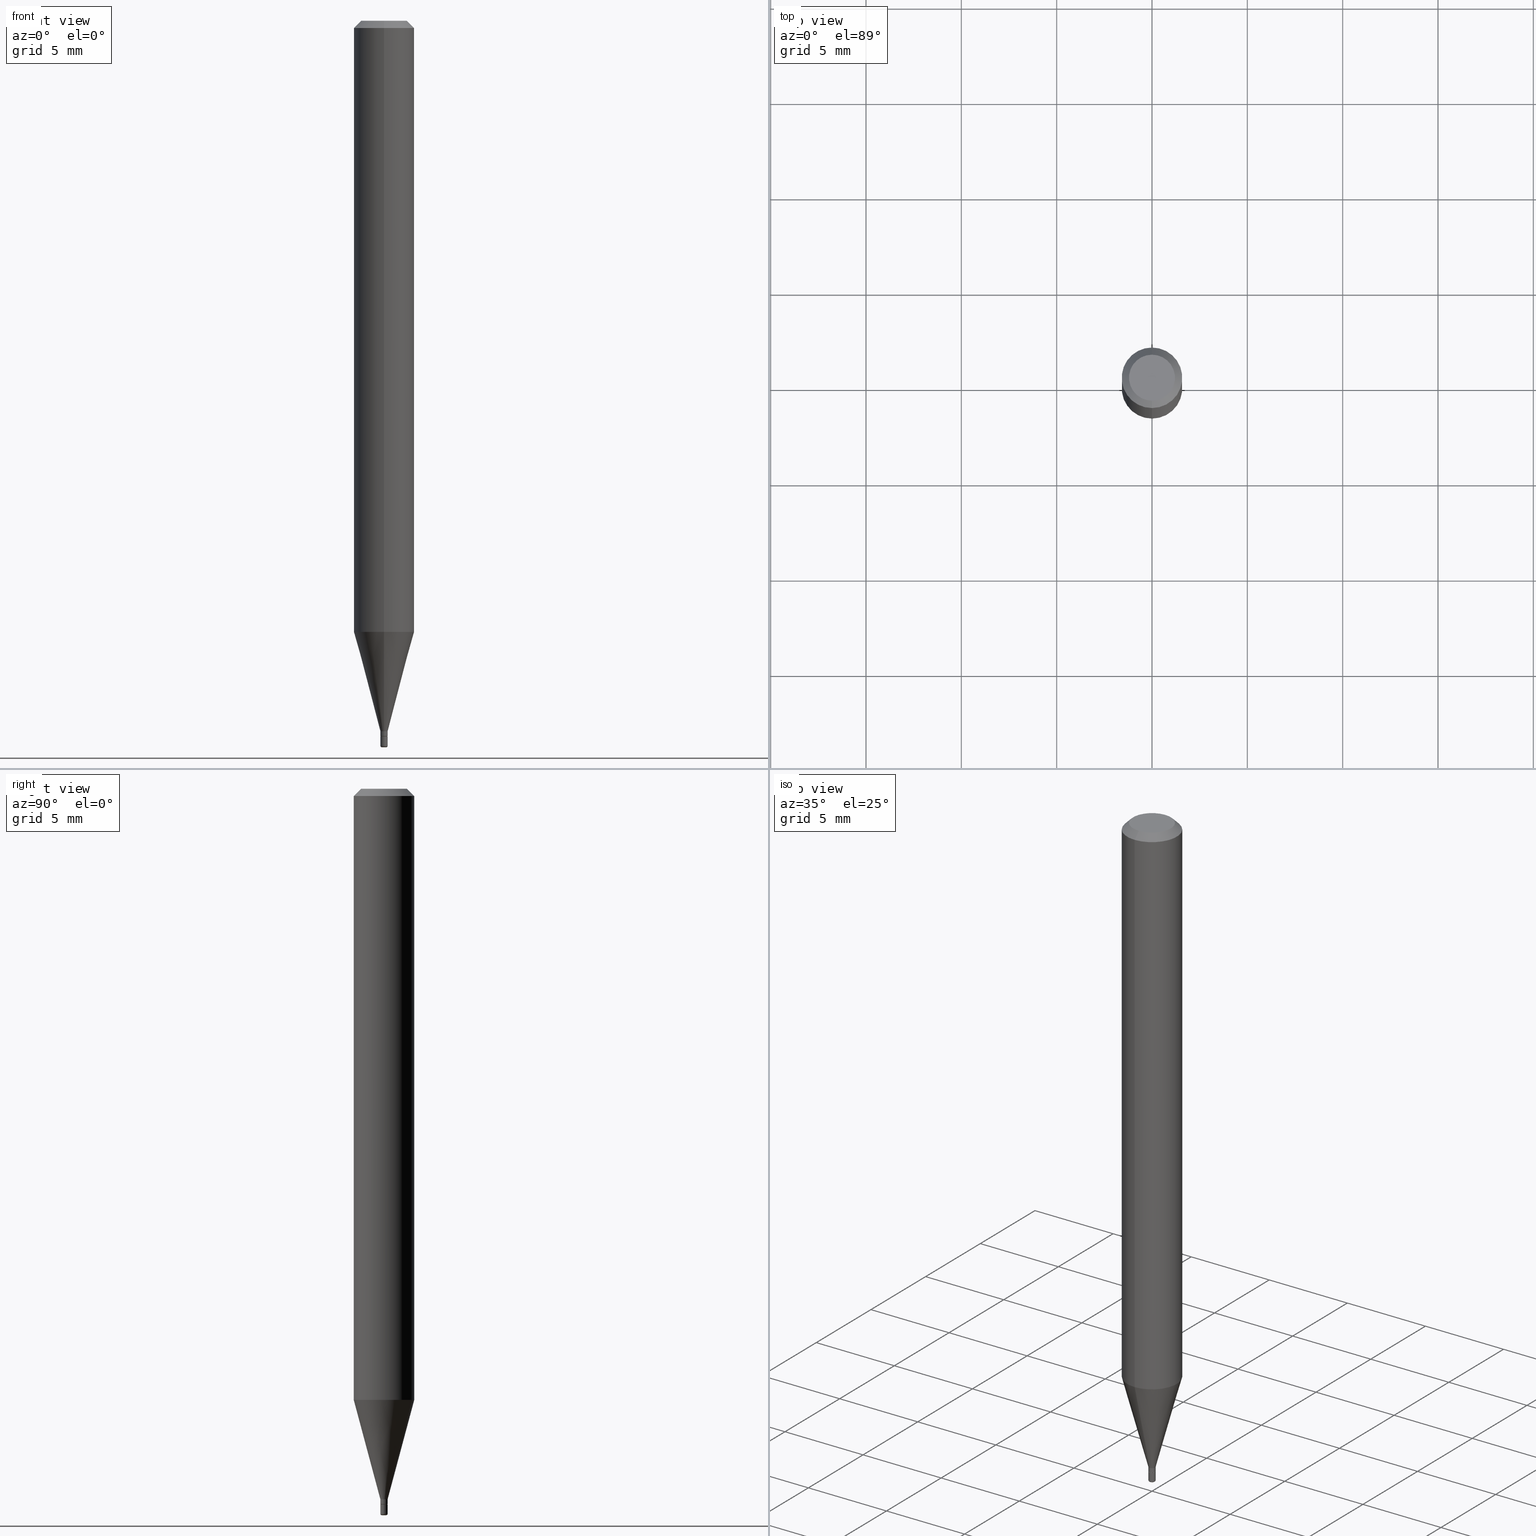
[diagram: canonical four-view strip — front | top / right | iso, engineering-drawing reading convention]
A machine part, canonical four-view strip (front | top / right | iso — engineering-drawing reading convention). The complete STEP part file that produces these views, byte-faithful:
ISO-10303-21;
HEADER;
FILE_DESCRIPTION (( 'STEP AP203' ),
    '1' );
FILE_NAME ('08641.STEP',
    '2024-02-29T20:07:36',
    ( '' ),
    ( '' ),
    'SwSTEP 2.0',
    'SolidWorks 2023',
    '' );
FILE_SCHEMA (( 'CONFIG_CONTROL_DESIGN' ));
ENDSEC;

DATA;
#1 = ORIENTED_EDGE ( 'NONE', *, *, #42, .F. ) ;
#2 = ADVANCED_FACE ( 'NONE', ( #465 ), #269, .T. ) ;
#3 = PLANE ( 'NONE',  #129 ) ;
#4 = CIRCLE ( 'NONE', #237, 0.04750000000000000749 ) ;
#5 = EDGE_LOOP ( 'NONE', ( #428, #290 ) ) ;
#6 = CARTESIAN_POINT ( 'NONE',  ( -6.682171226906381359E-45, 9.529232442263498646E-31, 2.730877953512450697E-16 ) ) ;
#7 = EDGE_LOOP ( 'NONE', ( #265, #104, #441, #200 ) ) ;
#8 = FACE_OUTER_BOUND ( 'NONE', #304, .T. ) ;
#9 = ORIENTED_EDGE ( 'NONE', *, *, #452, .T. ) ;
#10 = CARTESIAN_POINT ( 'NONE',  ( 0.000000000000000000, 0.000000000000000000, 0.000000000000000000 ) ) ;
#11 = AXIS2_PLACEMENT_3D ( 'NONE', #468, #22, #303 ) ;
#12 = CC_DESIGN_APPROVAL ( #353, ( #112 ) ) ;
#13 = DIRECTION ( 'NONE',  ( -6.982962677686265922E-15, -1.000000000000000000, 0.000000000000000000 ) ) ;
#14 = CC_DESIGN_DATE_AND_TIME_ASSIGNMENT ( #242, #31, ( #112 ) ) ;
#15 = PLANE ( 'NONE',  #130 ) ;
#16 = PRODUCT ( '08641', '08641', '', ( #439 ) ) ;
#17 = DIRECTION ( 'NONE',  ( -6.982962677686265922E-15, -1.000000000000000000, 3.489439149049856002E-15 ) ) ;
#18 = EDGE_CURVE ( 'NONE', #160, #508, #100, .T. ) ;
#19 = CIRCLE ( 'NONE', #88, 0.007499999999999965028 ) ;
#20 = ORIENTED_EDGE ( 'NONE', *, *, #69, .T. ) ;
#21 = ORIENTED_EDGE ( 'NONE', *, *, #511, .F. ) ;
#22 = DIRECTION ( 'NONE',  ( -2.445468806185136597E-29, 3.491481338843145583E-15, 1.000000000000000000 ) ) ;
#23 = ORIENTED_EDGE ( 'NONE', *, *, #452, .F. ) ;
#24 = EDGE_CURVE ( 'NONE', #193, #116, #4, .T. ) ;
#25 = DIRECTION ( 'NONE',  ( -4.851104656540966641E-15, -0.7071067811865503483, -0.7071067811865446862 ) ) ;
#26 = CARTESIAN_POINT ( 'NONE',  ( -5.237222008261085941E-17, -0.007500000000005154453, -1.477000000000000313 ) ) ;
#27 = CIRCLE ( 'NONE', #473, 0.06250000000000000000 ) ;
#28 = DIRECTION ( 'NONE',  ( -6.982962677686265133E-15, -1.000000000000000000, 0.000000000000000000 ) ) ;
#29 = ADVANCED_FACE ( 'NONE', ( #310 ), #472, .T. ) ;
#30 = EDGE_LOOP ( 'NONE', ( #20, #384, #169, #23 ) ) ;
#31 = DATE_TIME_ROLE ( 'creation_date' ) ;
#32 = DIRECTION ( 'NONE',  ( -2.446894859695865878E-29, 3.489439149049856397E-15, 1.000000000000000000 ) ) ;
#33 = DIMENSIONAL_EXPONENTS ( 1.000000000000000000, 0.000000000000000000, 0.000000000000000000, 0.000000000000000000, 0.000000000000000000, 0.000000000000000000, 0.000000000000000000 ) ;
#34 = DIRECTION ( 'NONE',  ( -6.982962677686265133E-15, -1.000000000000000000, 3.489439149049856002E-15 ) ) ;
#35 = VECTOR ( 'NONE', #376, 39.37007874015748143 ) ;
#36 = EDGE_CURVE ( 'NONE', #358, #381, #513, .T. ) ;
#37 = DIRECTION ( 'NONE',  ( -2.446894859695865878E-29, 3.489439149049856002E-15, 1.000000000000000000 ) ) ;
#38 = ORIENTED_EDGE ( 'NONE', *, *, #91, .T. ) ;
#39 = PERSON_AND_ORGANIZATION ( #518, #197 ) ;
#40 = DIRECTION ( 'NONE',  ( -6.982962677686265922E-15, -1.000000000000000000, 3.489439149049856397E-15 ) ) ;
#41 = SHAPE_DEFINITION_REPRESENTATION ( #455, #416 ) ;
#42 = EDGE_CURVE ( 'NONE', #172, #68, #394, .T. ) ;
#43 = LINE ( 'NONE', #207, #385 ) ;
#44 = CIRCLE ( 'NONE', #341, 0.06250000000000000000 ) ;
#45 = ORIENTED_EDGE ( 'NONE', *, *, #50, .T. ) ;
#46 = FACE_OUTER_BOUND ( 'NONE', #154, .T. ) ;
#47 = EDGE_CURVE ( 'NONE', #228, #358, #431, .T. ) ;
#48 = ORIENTED_EDGE ( 'NONE', *, *, #444, .F. ) ;
#49 = CARTESIAN_POINT ( 'NONE',  ( 0.000000000000000000, 0.000000000000000000, 0.000000000000000000 ) ) ;
#50 = EDGE_CURVE ( 'NONE', #203, #275, #484, .T. ) ;
#51 = DIRECTION ( 'NONE',  ( -2.446894859695865878E-29, 3.489439149049856002E-15, 1.000000000000000000 ) ) ;
#52 = AXIS2_PLACEMENT_3D ( 'NONE', #6, #73, #34 ) ;
#53 = AXIS2_PLACEMENT_3D ( 'NONE', #342, #60, #344 ) ;
#54 = FACE_OUTER_BOUND ( 'NONE', #30, .T. ) ;
#55 = CARTESIAN_POINT ( 'NONE',  ( 3.087338282629810995E-29, -4.402755200976571001E-15, -1.261737205583712162 ) ) ;
#56 = LENGTH_MEASURE_WITH_UNIT ( LENGTH_MEASURE( 0.02539999999999999897 ), #417 );
#57 = ORIENTED_EDGE ( 'NONE', *, *, #110, .F. ) ;
#58 = CLOSED_SHELL ( 'NONE', ( #2, #308, #368, #268, #323, #210, #474, #29, #488, #138, #400, #127 ) ) ;
#59 = APPROVAL_PERSON_ORGANIZATION ( #234, #156, #247 ) ;
#60 = DIRECTION ( 'NONE',  ( -2.446894859695865878E-29, 3.489439149049856002E-15, 1.000000000000000000 ) ) ;
#61 = EDGE_LOOP ( 'NONE', ( #81, #401, #211, #350 ) ) ;
#62 = FACE_OUTER_BOUND ( 'NONE', #107, .T. ) ;
#63 = DIRECTION ( 'NONE',  ( -6.982962677686265922E-15, -1.000000000000000000, 3.489439149049856397E-15 ) ) ;
#64 = CARTESIAN_POINT ( 'NONE',  ( -0.004499999999999991854, -5.189352222110848406E-15, -1.500000000000000222 ) ) ;
#65 = VERTEX_POINT ( 'NONE', #398 ) ;
#66 = DIRECTION ( 'NONE',  ( -2.446894859695865878E-29, 3.489439149049856397E-15, 1.000000000000000000 ) ) ;
#67 = AXIS2_PLACEMENT_3D ( 'NONE', #10, #97, #17 ) ;
#68 = VERTEX_POINT ( 'NONE', #276 ) ;
#69 = EDGE_CURVE ( 'NONE', #288, #206, #19, .T. ) ;
#70 = PERSON_AND_ORGANIZATION ( #518, #197 ) ;
#71 = DIRECTION ( 'NONE',  ( 1.839019923739595582E-15, 0.2588190451025242922, 0.9659258262890673130 ) ) ;
#72 = DATE_AND_TIME ( #285, #335 ) ;
#73 = DIRECTION ( 'NONE',  ( -2.446894859695865878E-29, 3.489439149049856002E-15, 1.000000000000000000 ) ) ;
#74 = ORIENTED_EDGE ( 'NONE', *, *, #177, .T. ) ;
#75 = DATE_TIME_ROLE ( 'classification_date' ) ;
#76 = VECTOR ( 'NONE', #71, 39.37007874015748854 ) ;
#77 = CARTESIAN_POINT ( 'NONE',  ( 3.589594759173836037E-29, -5.119007231656140141E-15, -1.467000000000000304 ) ) ;
#78 = CIRCLE ( 'NONE', #266, 0.007499999999999965028 ) ;
#79 = EDGE_CURVE ( 'NONE', #206, #160, #392, .T. ) ;
#80 = PRODUCT_DEFINITION_FORMATION_WITH_SPECIFIED_SOURCE ( 'ANY', '', #16, .NOT_KNOWN. ) ;
#81 = ORIENTED_EDGE ( 'NONE', *, *, #191, .T. ) ;
#82 = COORDINATED_UNIVERSAL_TIME_OFFSET ( 5, 0, .BEHIND. ) ;
#83 = DIRECTION ( 'NONE',  ( 1.000000000000000000, -6.982962677686265922E-15, 4.876176775795935793E-29 ) ) ;
#84 = ORIENTED_EDGE ( 'NONE', *, *, #232, .F. ) ;
#85 = DIRECTION ( 'NONE',  ( -2.445468806185136597E-29, 3.491481338843145583E-15, 1.000000000000000000 ) ) ;
#86 = ORIENTED_EDGE ( 'NONE', *, *, #110, .T. ) ;
#87 = DIRECTION ( 'NONE',  ( -6.982962677686265922E-15, -1.000000000000000000, 0.000000000000000000 ) ) ;
#88 = AXIS2_PLACEMENT_3D ( 'NONE', #235, #243, #119 ) ;
#89 = AXIS2_PLACEMENT_3D ( 'NONE', #427, #301, #223 ) ;
#90 = EDGE_LOOP ( 'NONE', ( #231, #503, #45, #379 ) ) ;
#91 = EDGE_CURVE ( 'NONE', #508, #160, #446, .T. ) ;
#92 = DIRECTION ( 'NONE',  ( -2.445468806185136597E-29, 3.491481338843145583E-15, 1.000000000000000000 ) ) ;
#93 = FACE_OUTER_BOUND ( 'NONE', #166, .T. ) ;
#94 = FACE_OUTER_BOUND ( 'NONE', #90, .T. ) ;
#95 = ORIENTED_EDGE ( 'NONE', *, *, #336, .T. ) ;
#96 = CIRCLE ( 'NONE', #53, 0.007500000000000010998 ) ;
#97 = DIRECTION ( 'NONE',  ( -2.446894859695865878E-29, 3.489439149049856002E-15, 1.000000000000000000 ) ) ;
#98 = CARTESIAN_POINT ( 'NONE',  ( 3.316907271900976589E-16, 0.04750000000000000749, -2.920446190424566493E-17 ) ) ;
#99 = ORIENTED_EDGE ( 'NONE', *, *, #177, .F. ) ;
#100 = CIRCLE ( 'NONE', #412, 0.007499999999999997120 ) ;
#101 = CIRCLE ( 'NONE', #481, 0.06250000000000000000 ) ;
#102 = LOCAL_TIME ( 15, 7, 36.00000000000000000, #389 ) ;
#103 = LINE ( 'NONE', #461, #315 ) ;
#104 = ORIENTED_EDGE ( 'NONE', *, *, #168, .T. ) ;
#105 = DIRECTION ( 'NONE',  ( 2.446894859695865317E-29, -3.489439149049856397E-15, -1.000000000000000000 ) ) ;
#106 = CC_DESIGN_PERSON_AND_ORGANIZATION_ASSIGNMENT ( #274, #470, ( #16 ) ) ;
#107 = EDGE_LOOP ( 'NONE', ( #469, #295, #388, #1 ) ) ;
#108 = CARTESIAN_POINT ( 'NONE',  ( -5.237222008264694979E-17, -0.007499999999999993651, 2.617079361787390017E-17 ) ) ;
#109 = CARTESIAN_POINT ( 'NONE',  ( 3.613180161138540039E-29, -5.158663678140748150E-15, -1.477500000000000258 ) ) ;
#110 = EDGE_CURVE ( 'NONE', #420, #409, #291, .T. ) ;
#111 = VECTOR ( 'NONE', #128, 39.37007874015748143 ) ;
#112 = PRODUCT_DEFINITION ( 'UNKNOWN', '', #80, #190 ) ;
#113 = DIRECTION ( 'NONE',  ( -6.982962677686265922E-15, -1.000000000000000000, 3.489439149049856397E-15 ) ) ;
#114 = PERSON_AND_ORGANIZATION_ROLE ( 'creator' ) ;
#115 = CARTESIAN_POINT ( 'NONE',  ( 5.329070518204347910E-17, 0.007499999999994891829, -1.467000000000000304 ) ) ;
#116 = VERTEX_POINT ( 'NONE', #443 ) ;
#117 = PERSON_AND_ORGANIZATION_ROLE ( 'creator' ) ;
#118 = VECTOR ( 'NONE', #436, 39.37007874015748143 ) ;
#119 = DIRECTION ( 'NONE',  ( 1.000000000000000000, -6.982962677686300632E-15, 0.000000000000000000 ) ) ;
#120 = AXIS2_PLACEMENT_3D ( 'NONE', #49, #370, #180 ) ;
#121 = EDGE_LOOP ( 'NONE', ( #21, #189, #74, #330 ) ) ;
#122 = COORDINATED_UNIVERSAL_TIME_OFFSET ( 5, 0, .BEHIND. ) ;
#123 = CARTESIAN_POINT ( 'NONE',  ( 2.486899575160686153E-16, 0.007499999999994892697, -1.467000000000000304 ) ) ;
#124 = ORIENTED_EDGE ( 'NONE', *, *, #426, .F. ) ;
#125 = DIRECTION ( 'NONE',  ( -2.438088387897960049E-29, 3.491481338843145188E-15, 1.000000000000000000 ) ) ;
#126 = ORIENTED_EDGE ( 'NONE', *, *, #426, .T. ) ;
#127 = ADVANCED_FACE ( 'NONE', ( #199 ), #479, .T. ) ;
#128 = DIRECTION ( 'NONE',  ( -2.446894859695865878E-29, 3.489439149049856397E-15, 1.000000000000000000 ) ) ;
#129 = AXIS2_PLACEMENT_3D ( 'NONE', #317, #233, #113 ) ;
#130 = AXIS2_PLACEMENT_3D ( 'NONE', #408, #453, #496 ) ;
#131 = CC_DESIGN_PERSON_AND_ORGANIZATION_ASSIGNMENT ( #39, #361, ( #419 ) ) ;
#132 = EDGE_CURVE ( 'NONE', #163, #65, #320, .T. ) ;
#133 = DIRECTION ( 'NONE',  ( -6.982962677686265133E-15, -1.000000000000000000, 0.000000000000000000 ) ) ;
#134 = DIRECTION ( 'NONE',  ( -2.446894859695865878E-29, 3.489439149049856002E-15, 1.000000000000000000 ) ) ;
#135 = CARTESIAN_POINT ( 'NONE',  ( 0.000000000000000000, 0.000000000000000000, 0.000000000000000000 ) ) ;
#136 = CIRCLE ( 'NONE', #429, 0.004499999999999991854 ) ;
#137 = CARTESIAN_POINT ( 'NONE',  ( 3.668203209277704895E-29, -5.237222008264718177E-15, -1.500000000000000222 ) ) ;
#138 = ADVANCED_FACE ( 'NONE', ( #476 ), #3, .F. ) ;
#139 = DIRECTION ( 'NONE',  ( -2.445468806185136877E-29, 3.491481338843145188E-15, 1.000000000000000000 ) ) ;
#140 = ORIENTED_EDGE ( 'NONE', *, *, #336, .F. ) ;
#141 = ADVANCED_FACE ( 'NONE', ( #360 ), #371, .T. ) ;
#142 = DIRECTION ( 'NONE',  ( 1.000000000000000000, -6.982962677686396084E-15, 0.000000000000000000 ) ) ;
#143 = ORIENTED_EDGE ( 'NONE', *, *, #511, .T. ) ;
#144 = AXIS2_PLACEMENT_3D ( 'NONE', #433, #406, #162 ) ;
#145 = APPROVAL ( #277, 'UNSPECIFIED' ) ;
#146 = AXIS2_PLACEMENT_3D ( 'NONE', #289, #209, #445 ) ;
#147 = APPROVAL_PERSON_ORGANIZATION ( #319, #145, #391 ) ;
#148 = DIRECTION ( 'NONE',  ( -6.982962677686265922E-15, -1.000000000000000000, 3.483106191921935554E-15 ) ) ;
#149 = ORIENTED_EDGE ( 'NONE', *, *, #399, .T. ) ;
#150 = FACE_OUTER_BOUND ( 'NONE', #363, .T. ) ;
#151 = ADVANCED_FACE ( 'NONE', ( #278 ), #390, .F. ) ;
#152 = DIRECTION ( 'NONE',  ( 2.446894859695865878E-29, -3.489439149049856002E-15, -1.000000000000000000 ) ) ;
#153 = CALENDAR_DATE ( 2024, 29, 2 ) ;
#154 = EDGE_LOOP ( 'NONE', ( #345, #404, #9, #434 ) ) ;
#155 = APPROVAL_DATE_TIME ( #405, #156 ) ;
#156 = APPROVAL ( #432, 'UNSPECIFIED' ) ;
#157 = CARTESIAN_POINT ( 'NONE',  ( 3.614063707770794990E-29, -5.153901623146638448E-15, -1.477000000000000313 ) ) ;
#158 = COORDINATED_UNIVERSAL_TIME_OFFSET ( 5, 0, .BEHIND. ) ;
#159 = DIRECTION ( 'NONE',  ( 1.000000000000000000, -6.982962677686237523E-15, 0.000000000000000000 ) ) ;
#160 = VERTEX_POINT ( 'NONE', #403 ) ;
#161 = PERSON_AND_ORGANIZATION ( #518, #197 ) ;
#162 = DIRECTION ( 'NONE',  ( 1.000000000000000000, -6.982962677686300632E-15, 4.883557194083124672E-29 ) ) ;
#163 = VERTEX_POINT ( 'NONE', #123 ) ;
#164 = DIRECTION ( 'NONE',  ( -2.446894859695865878E-29, 3.489439149049856002E-15, 1.000000000000000000 ) ) ;
#165 = CONICAL_SURFACE ( 'NONE', #364, 0.007500000000000010998, 0.2617993877991495744 ) ;
#166 = EDGE_LOOP ( 'NONE', ( #493, #143, #482, #99 ) ) ;
#167 = LINE ( 'NONE', #329, #118 ) ;
#168 = EDGE_CURVE ( 'NONE', #65, #172, #43, .T. ) ;
#169 = ORIENTED_EDGE ( 'NONE', *, *, #91, .F. ) ;
#170 = LINE ( 'NONE', #214, #111 ) ;
#171 = CC_DESIGN_PERSON_AND_ORGANIZATION_ASSIGNMENT ( #326, #516, ( #80 ) ) ;
#172 = VERTEX_POINT ( 'NONE', #365 ) ;
#173 = EDGE_CURVE ( 'NONE', #116, #193, #505, .T. ) ;
#174 = DIRECTION ( 'NONE',  ( -6.982962677686265922E-15, -1.000000000000000000, 4.370956789862821150E-15 ) ) ;
#175 = CONICAL_SURFACE ( 'NONE', #238, 0.006999999999999974992, 0.7853981633975507526 ) ;
#176 = LOCAL_TIME ( 15, 7, 36.00000000000000000, #158 ) ;
#177 = EDGE_CURVE ( 'NONE', #116, #172, #167, .T. ) ;
#178 = DIRECTION ( 'NONE',  ( 1.000000000000000000, -6.982962677686267499E-15, 4.876176775795935793E-29 ) ) ;
#179 = CARTESIAN_POINT ( 'NONE',  ( 3.614063707770794990E-29, -5.153901623146638448E-15, -1.477000000000000313 ) ) ;
#180 = DIRECTION ( 'NONE',  ( 1.000000000000000000, -6.982962677686267499E-15, 4.876176775795935793E-29 ) ) ;
#181 = AXIS2_PLACEMENT_3D ( 'NONE', #373, #450, #133 ) ;
#182 = CARTESIAN_POINT ( 'NONE',  ( 0.004499999999999991854, -5.258170896297777797E-15, -1.497000000000000108 ) ) ;
#183 = ORIENTED_EDGE ( 'NONE', *, *, #187, .T. ) ;
#184 = DIRECTION ( 'NONE',  ( -2.445468806185136597E-29, 3.491481338843145583E-15, 1.000000000000000000 ) ) ;
#185 = ORIENTED_EDGE ( 'NONE', *, *, #47, .F. ) ;
#186 = VECTOR ( 'NONE', #362, 39.37007874015748854 ) ;
#187 = EDGE_CURVE ( 'NONE', #203, #163, #456, .T. ) ;
#188 = DIRECTION ( 'NONE',  ( -2.446894859695865878E-29, 3.489439149049856002E-15, 1.000000000000000000 ) ) ;
#189 = ORIENTED_EDGE ( 'NONE', *, *, #173, .F. ) ;
#190 = DESIGN_CONTEXT ( 'detailed design', #491, 'design' ) ;
#191 = EDGE_CURVE ( 'NONE', #381, #358, #457, .T. ) ;
#192 = CARTESIAN_POINT ( 'NONE',  ( 0.007499999999999997120, -5.211035898223395623E-15, -1.477500000000000258 ) ) ;
#193 = VERTEX_POINT ( 'NONE', #415 ) ;
#194 = CC_DESIGN_DATE_AND_TIME_ASSIGNMENT ( #72, #75, ( #419 ) ) ;
#195 = CARTESIAN_POINT ( 'NONE',  ( 4.973799150324298117E-17, 0.006999999999994819394, -1.477500000000000258 ) ) ;
#196 = VECTOR ( 'NONE', #487, 39.37007874015748143 ) ;
#197 = ORGANIZATION ( 'UNSPECIFIED', 'UNSPECIFIED', '' ) ;
#198 = COORDINATED_UNIVERSAL_TIME_OFFSET ( 5, 0, .BEHIND. ) ;
#199 = FACE_OUTER_BOUND ( 'NONE', #302, .T. ) ;
#200 = ORIENTED_EDGE ( 'NONE', *, *, #246, .F. ) ;
#201 = DIRECTION ( 'NONE',  ( 1.000000000000000000, 0.000000000000000000, 0.000000000000000000 ) ) ;
#202 = CARTESIAN_POINT ( 'NONE',  ( 3.668203209277704895E-29, -5.237222008264718177E-15, -1.500000000000000222 ) ) ;
#203 = VERTEX_POINT ( 'NONE', #250 ) ;
#204 = APPROVAL_DATE_TIME ( #435, #353 ) ;
#205 = DIRECTION ( 'NONE',  ( -2.445468806185136597E-29, 3.491481338843145583E-15, 1.000000000000000000 ) ) ;
#206 = VERTEX_POINT ( 'NONE', #367 ) ;
#207 = CARTESIAN_POINT ( 'NONE',  ( 4.440892098500625669E-16, 0.06250000000000000000, -2.180899468156160002E-16 ) ) ;
#208 = CIRCLE ( 'NONE', #498, 0.006999999999999974992 ) ;
#209 = DIRECTION ( 'NONE',  ( -2.446894859695865878E-29, 3.489439149049856002E-15, 1.000000000000000000 ) ) ;
#210 = ADVANCED_FACE ( 'NONE', ( #94 ), #298, .T. ) ;
#211 = ORIENTED_EDGE ( 'NONE', *, *, #187, .F. ) ;
#212 = DIRECTION ( 'NONE',  ( 1.000000000000000000, -6.982962677686300632E-15, 0.000000000000000000 ) ) ;
#213 = EDGE_LOOP ( 'NONE', ( #38, #261 ) ) ;
#214 = CARTESIAN_POINT ( 'NONE',  ( 5.329070518200746266E-17, 0.007499999999999993651, -2.617079361787390017E-17 ) ) ;
#215 = AXIS2_PLACEMENT_3D ( 'NONE', #324, #125, #83 ) ;
#216 = VECTOR ( 'NONE', #418, 39.37007874015748143 ) ;
#217 = EDGE_CURVE ( 'NONE', #206, #288, #78, .T. ) ;
#218 = CARTESIAN_POINT ( 'NONE',  ( 3.589594759173836037E-29, -5.119007231656140141E-15, -1.467000000000000304 ) ) ;
#219 = CARTESIAN_POINT ( 'NONE',  ( 5.151434834264323938E-17, 0.006999999999994819394, -1.477500000000000258 ) ) ;
#220 = CYLINDRICAL_SURFACE ( 'NONE', #281, 0.06250000000000000000 ) ;
#221 = EDGE_LOOP ( 'NONE', ( #124, #57 ) ) ;
#222 = VECTOR ( 'NONE', #514, 39.37007874015748143 ) ;
#223 = DIRECTION ( 'NONE',  ( -1.000000000000000000, 7.105427357600926128E-15, 0.000000000000000000 ) ) ;
#224 = CC_DESIGN_PERSON_AND_ORGANIZATION_ASSIGNMENT ( #239, #114, ( #80 ) ) ;
#225 = ADVANCED_FACE ( 'NONE', ( #374 ), #15, .F. ) ;
#226 = CARTESIAN_POINT ( 'NONE',  ( 0.000000000000000000, 0.000000000000000000, 0.000000000000000000 ) ) ;
#227 = CARTESIAN_POINT ( 'NONE',  ( -4.287811248607203282E-16, -0.06250000000000005551, -0.01499999999999948597 ) ) ;
#228 = VERTEX_POINT ( 'NONE', #219 ) ;
#229 = AXIS2_PLACEMENT_3D ( 'NONE', #467, #152, #312 ) ;
#230 = DIRECTION ( 'NONE',  ( 1.000000000000000000, -6.982962677686237523E-15, 0.000000000000000000 ) ) ;
#231 = ORIENTED_EDGE ( 'NONE', *, *, #132, .F. ) ;
#232 = EDGE_CURVE ( 'NONE', #275, #65, #44, .T. ) ;
#233 = DIRECTION ( 'NONE',  ( -2.446894859695865317E-29, 3.489439149049856397E-15, 1.000000000000000000 ) ) ;
#234 = PERSON_AND_ORGANIZATION ( #518, #197 ) ;
#235 = CARTESIAN_POINT ( 'NONE',  ( 3.660866802859150328E-29, -5.226747564248189155E-15, -1.497000000000000108 ) ) ;
#236 = ORIENTED_EDGE ( 'NONE', *, *, #69, .F. ) ;
#237 = AXIS2_PLACEMENT_3D ( 'NONE', #425, #383, #347 ) ;
#238 = AXIS2_PLACEMENT_3D ( 'NONE', #267, #188, #460 ) ;
#239 = PERSON_AND_ORGANIZATION ( #518, #197 ) ;
#240 = DIRECTION ( 'NONE',  ( -2.446894859695865878E-29, 3.489439149049856002E-15, 1.000000000000000000 ) ) ;
#241 = ORIENTED_EDGE ( 'NONE', *, *, #504, .T. ) ;
#242 = DATE_AND_TIME ( #430, #264 ) ;
#243 = DIRECTION ( 'NONE',  ( -2.445468806185136597E-29, 3.491481338843145583E-15, 1.000000000000000000 ) ) ;
#244 = MANIFOLD_SOLID_BREP ( 'Body-Move/Copy2[1]', #314 ) ;
#245 = ORIENTED_EDGE ( 'NONE', *, *, #47, .T. ) ;
#246 = EDGE_CURVE ( 'NONE', #275, #68, #256, .T. ) ;
#247 = APPROVAL_ROLE ( '' ) ;
#248 = CARTESIAN_POINT ( 'NONE',  ( 0.000000000000000000, 0.000000000000000000, 0.000000000000000000 ) ) ;
#249 = MANIFOLD_SOLID_BREP ( 'Body-Move/Copy2[2]', #58 ) ;
#250 = CARTESIAN_POINT ( 'NONE',  ( -5.237222008261117372E-17, -0.007500000000005129300, -1.467000000000000304 ) ) ;
#251 = AXIS2_PLACEMENT_3D ( 'NONE', #182, #387, #142 ) ;
#252 = APPLICATION_CONTEXT ( 'configuration controlled 3d designs of mechanical parts and assemblies' ) ;
#253 = ORIENTED_EDGE ( 'NONE', *, *, #444, .T. ) ;
#254 = CARTESIAN_POINT ( 'NONE',  ( -4.364351673553916201E-16, -0.06250000000000000000, 2.180899468156160002E-16 ) ) ;
#255 = CARTESIAN_POINT ( 'NONE',  ( 3.670342289543726037E-31, -5.234158723574680811E-17, -0.01499999999999970281 ) ) ;
#256 = LINE ( 'NONE', #254, #35 ) ;
#257 = ORIENTED_EDGE ( 'NONE', *, *, #485, .F. ) ;
#258 = ADVANCED_FACE ( 'NONE', ( #54 ), #338, .T. ) ;
#259 = DIRECTION ( 'NONE',  ( -6.982962677686265922E-15, -1.000000000000000000, 0.000000000000000000 ) ) ;
#260 = LINE ( 'NONE', #227, #378 ) ;
#261 = ORIENTED_EDGE ( 'NONE', *, *, #18, .T. ) ;
#262 = CC_DESIGN_PERSON_AND_ORGANIZATION_ASSIGNMENT ( #161, #117, ( #112 ) ) ;
#263 = LINE ( 'NONE', #108, #507 ) ;
#264 = LOCAL_TIME ( 15, 7, 36.00000000000000000, #82 ) ;
#265 = ORIENTED_EDGE ( 'NONE', *, *, #232, .T. ) ;
#266 = AXIS2_PLACEMENT_3D ( 'NONE', #296, #92, #212 ) ;
#267 = CARTESIAN_POINT ( 'NONE',  ( 3.615287155200642433E-29, -5.155646342721163009E-15, -1.477500000000000258 ) ) ;
#268 = ADVANCED_FACE ( 'NONE', ( #410 ), #458, .T. ) ;
#269 = CYLINDRICAL_SURFACE ( 'NONE', #448, 0.007499999999999993651 ) ;
#270 = FACE_OUTER_BOUND ( 'NONE', #5, .T. ) ;
#271 = EDGE_LOOP ( 'NONE', ( #183, #321, #84, #343 ) ) ;
#272 = DIRECTION ( 'NONE',  ( -6.982962677686265922E-15, -1.000000000000000000, 3.489439149049856002E-15 ) ) ;
#273 = AXIS2_PLACEMENT_3D ( 'NONE', #98, #105, #424 ) ;
#274 = PERSON_AND_ORGANIZATION ( #518, #197 ) ;
#275 = VERTEX_POINT ( 'NONE', #337 ) ;
#276 = CARTESIAN_POINT ( 'NONE',  ( -4.364351673553912750E-16, -0.06250000000000005551, -0.01499999999999948597 ) ) ;
#277 = APPROVAL_STATUS ( 'not_yet_approved' ) ;
#278 = FACE_OUTER_BOUND ( 'NONE', #221, .T. ) ;
#279 = CC_DESIGN_APPROVAL ( #145, ( #80 ) ) ;
#280 = EDGE_LOOP ( 'NONE', ( #369, #86, #149, #313 ) ) ;
#281 = AXIS2_PLACEMENT_3D ( 'NONE', #226, #382, #272 ) ;
#282 =( NAMED_UNIT ( * ) PLANE_ANGLE_UNIT ( ) SI_UNIT ( $, .RADIAN. ) );
#283 = CARTESIAN_POINT ( 'NONE',  ( 3.613180161138540039E-29, -5.158663678140748150E-15, -1.477500000000000258 ) ) ;
#284 = ADVANCED_FACE ( 'NONE', ( #46 ), #490, .T. ) ;
#285 = CALENDAR_DATE ( 2024, 29, 2 ) ;
#286 = CARTESIAN_POINT ( 'NONE',  ( -5.237222008261117372E-17, -0.007500000000005129300, -1.467000000000000304 ) ) ;
#287 = EDGE_CURVE ( 'NONE', #65, #275, #101, .T. ) ;
#288 = VERTEX_POINT ( 'NONE', #499 ) ;
#289 = CARTESIAN_POINT ( 'NONE',  ( 3.615287155200642433E-29, -5.155646342721163009E-15, -1.477500000000000258 ) ) ;
#290 = ORIENTED_EDGE ( 'NONE', *, *, #24, .T. ) ;
#291 = CIRCLE ( 'NONE', #492, 0.004499999999999991854 ) ;
#292 = AXIS2_PLACEMENT_3D ( 'NONE', #255, #411, #506 ) ;
#293 = CARTESIAN_POINT ( 'NONE',  ( 3.589594759173836037E-29, -5.119007231656140141E-15, -1.467000000000000304 ) ) ;
#294 = DIRECTION ( 'NONE',  ( -2.446894859695865878E-29, 3.489439149049856002E-15, 1.000000000000000000 ) ) ;
#295 = ORIENTED_EDGE ( 'NONE', *, *, #287, .T. ) ;
#296 = CARTESIAN_POINT ( 'NONE',  ( 3.660866802859150328E-29, -5.226747564248189155E-15, -1.497000000000000108 ) ) ;
#297 = DIRECTION ( 'NONE',  ( -2.445468806185136597E-29, 3.491481338843145583E-15, 1.000000000000000000 ) ) ;
#298 = CONICAL_SURFACE ( 'NONE', #494, 0.007500000000000010998, 0.2617993877991495744 ) ;
#299 = CARTESIAN_POINT ( 'NONE',  ( 3.615287155200642433E-29, -5.155646342721163009E-15, -1.477500000000000258 ) ) ;
#300 = ORIENTED_EDGE ( 'NONE', *, *, #399, .F. ) ;
#301 = DIRECTION ( 'NONE',  ( 7.105427357601001859E-15, 1.000000000000000000, -3.491481338843145583E-15 ) ) ;
#302 = EDGE_LOOP ( 'NONE', ( #407, #349, #366, #501 ) ) ;
#303 = DIRECTION ( 'NONE',  ( 1.000000000000000000, -6.982962677686300632E-15, 4.883557194083124672E-29 ) ) ;
#304 = EDGE_LOOP ( 'NONE', ( #375, #245, #489, #48 ) ) ;
#305 = AXIS2_PLACEMENT_3D ( 'NONE', #357, #478, #517 ) ;
#306 = CIRCLE ( 'NONE', #89, 0.002999999999999972741 ) ;
#307 = CC_DESIGN_SECURITY_CLASSIFICATION ( #419, ( #80 ) ) ;
#308 = ADVANCED_FACE ( 'NONE', ( #8 ), #372, .T. ) ;
#309 = CARTESIAN_POINT ( 'NONE',  ( 0.004499999999999991854, -5.268645340314306819E-15, -1.500000000000000222 ) ) ;
#310 = FACE_OUTER_BOUND ( 'NONE', #121, .T. ) ;
#311 = CARTESIAN_POINT ( 'NONE',  ( 3.670342289543726037E-31, -5.234158723574680811E-17, -0.01499999999999970281 ) ) ;
#312 = DIRECTION ( 'NONE',  ( 6.982962677686265922E-15, 1.000000000000000000, -3.483106191921935554E-15 ) ) ;
#313 = ORIENTED_EDGE ( 'NONE', *, *, #217, .F. ) ;
#314 = CLOSED_SHELL ( 'NONE', ( #141, #258, #225, #284, #423, #151 ) ) ;
#315 = VECTOR ( 'NONE', #139, 39.37007874015748143 ) ;
#316 = CARTESIAN_POINT ( 'NONE',  ( 0.000000000000000000, 0.000000000000000000, 0.000000000000000000 ) ) ;
#317 = CARTESIAN_POINT ( 'NONE',  ( 3.615287155200642433E-29, -5.155646342721163009E-15, -1.477500000000000258 ) ) ;
#318 = EDGE_CURVE ( 'NONE', #358, #163, #170, .T. ) ;
#319 = PERSON_AND_ORGANIZATION ( #518, #197 ) ;
#320 = LINE ( 'NONE', #115, #76 ) ;
#321 = ORIENTED_EDGE ( 'NONE', *, *, #132, .T. ) ;
#322 = DIRECTION ( 'NONE',  ( 0.000000000000000000, 0.000000000000000000, 1.000000000000000000 ) ) ;
#323 = ADVANCED_FACE ( 'NONE', ( #334 ), #165, .T. ) ;
#324 = CARTESIAN_POINT ( 'NONE',  ( 3.582686580359766038E-29, -5.359686688179453325E-15, -1.500000000000000222 ) ) ;
#325 = CIRCLE ( 'NONE', #251, 0.002999999999999972741 ) ;
#326 = PERSON_AND_ORGANIZATION ( #518, #197 ) ;
#327 = DIRECTION ( 'NONE',  ( -6.982962677686265922E-15, -1.000000000000000000, 0.000000000000000000 ) ) ;
#328 = PRODUCT_RELATED_PRODUCT_CATEGORY ( 'detail', '', ( #16 ) ) ;
#329 = CARTESIAN_POINT ( 'NONE',  ( 4.364351673553919652E-16, 0.06249999999999995143, -0.01499999999999992138 ) ) ;
#330 = ORIENTED_EDGE ( 'NONE', *, *, #42, .T. ) ;
#331 = DIRECTION ( 'NONE',  ( -2.446894859695865878E-29, 3.489439149049856002E-15, 1.000000000000000000 ) ) ;
#332 = ORIENTED_EDGE ( 'NONE', *, *, #36, .F. ) ;
#333 = AXIS2_PLACEMENT_3D ( 'NONE', #135, #297, #178 ) ;
#334 = FACE_OUTER_BOUND ( 'NONE', #271, .T. ) ;
#335 = LOCAL_TIME ( 15, 7, 36.00000000000000000, #122 ) ;
#336 = EDGE_CURVE ( 'NONE', #228, #438, #463, .T. ) ;
#337 = CARTESIAN_POINT ( 'NONE',  ( -4.364351673553608052E-16, -0.06250000000000439926, -1.261737205583711940 ) ) ;
#338 = CYLINDRICAL_SURFACE ( 'NONE', #333, 0.007499999999999980640 ) ;
#339 = CARTESIAN_POINT ( 'NONE',  ( 3.087338282629810995E-29, -4.402755200976571001E-15, -1.261737205583712162 ) ) ;
#340 = UNCERTAINTY_MEASURE_WITH_UNIT (LENGTH_MEASURE( 1.000000000000000082E-05 ), #377, 'distance_accuracy_value', 'NONE');
#341 = AXIS2_PLACEMENT_3D ( 'NONE', #55, #497, #413 ) ;
#342 = CARTESIAN_POINT ( 'NONE',  ( 3.589594759173836037E-29, -5.119007231656140141E-15, -1.467000000000000304 ) ) ;
#343 = ORIENTED_EDGE ( 'NONE', *, *, #50, .F. ) ;
#344 = DIRECTION ( 'NONE',  ( -6.982962677686265922E-15, -1.000000000000000000, 0.000000000000000000 ) ) ;
#345 = ORIENTED_EDGE ( 'NONE', *, *, #79, .F. ) ;
#346 = DIRECTION ( 'NONE',  ( -2.446894859695865878E-29, 3.489439149049856002E-15, 1.000000000000000000 ) ) ;
#347 = DIRECTION ( 'NONE',  ( -6.982962677686265133E-15, -1.000000000000000000, 3.489439149049856002E-15 ) ) ;
#348 = AXIS2_PLACEMENT_3D ( 'NONE', #179, #331, #259 ) ;
#349 = ORIENTED_EDGE ( 'NONE', *, *, #36, .T. ) ;
#350 = ORIENTED_EDGE ( 'NONE', *, *, #459, .F. ) ;
#351 =( NAMED_UNIT ( * ) SI_UNIT ( $, .STERADIAN. ) SOLID_ANGLE_UNIT ( ) );
#352 = DIRECTION ( 'NONE',  ( 1.000000000000000000, -6.982962677686270655E-15, 0.000000000000000000 ) ) ;
#353 = APPROVAL ( #397, 'UNSPECIFIED' ) ;
#354 = AXIS2_PLACEMENT_3D ( 'NONE', #283, #205, #352 ) ;
#355 = AXIS2_PLACEMENT_3D ( 'NONE', #77, #240, #87 ) ;
#356 = APPROVAL_ROLE ( '' ) ;
#357 = CARTESIAN_POINT ( 'NONE',  ( 3.670342289543726037E-31, -5.234158723574680811E-17, -0.01499999999999970281 ) ) ;
#358 = VERTEX_POINT ( 'NONE', #451 ) ;
#359 = SECURITY_CLASSIFICATION_LEVEL ( 'unclassified' ) ;
#360 = FACE_OUTER_BOUND ( 'NONE', #447, .T. ) ;
#361 = PERSON_AND_ORGANIZATION_ROLE ( 'classification_officer' ) ;
#362 = DIRECTION ( 'NONE',  ( -1.807323732225325406E-15, -0.2588190451025175198, 0.9659258262890690894 ) ) ;
#363 = EDGE_LOOP ( 'NONE', ( #185, #95, #253, #332 ) ) ;
#364 = AXIS2_PLACEMENT_3D ( 'NONE', #293, #294, #495 ) ;
#365 = CARTESIAN_POINT ( 'NONE',  ( 4.440892098500935790E-16, 0.06249999999999995143, -0.01499999999999992138 ) ) ;
#366 = ORIENTED_EDGE ( 'NONE', *, *, #459, .T. ) ;
#367 = CARTESIAN_POINT ( 'NONE',  ( -0.007499999999999965028, -5.139414916012461486E-15, -1.497000000000000108 ) ) ;
#368 = ADVANCED_FACE ( 'NONE', ( #93 ), #395, .T. ) ;
#369 = ORIENTED_EDGE ( 'NONE', *, *, #504, .F. ) ;
#370 = DIRECTION ( 'NONE',  ( -2.445468806185136597E-29, 3.491481338843145583E-15, 1.000000000000000000 ) ) ;
#371 = TOROIDAL_SURFACE ( 'NONE', #144, 0.004499999999999991854, 0.002999999999999972741 ) ;
#372 = CONICAL_SURFACE ( 'NONE', #146, 0.006999999999999974992, 0.7853981633975507526 ) ;
#373 = CARTESIAN_POINT ( 'NONE',  ( 3.615287155200642433E-29, -5.155646342721163009E-15, -1.477500000000000258 ) ) ;
#374 = FACE_OUTER_BOUND ( 'NONE', #213, .T. ) ;
#375 = ORIENTED_EDGE ( 'NONE', *, *, #485, .T. ) ;
#376 = DIRECTION ( 'NONE',  ( -2.446894859695865878E-29, 3.489439149049856397E-15, 1.000000000000000000 ) ) ;
#377 =( CONVERSION_BASED_UNIT ( 'INCH', #56 ) LENGTH_UNIT ( ) NAMED_UNIT ( #33 ) );
#378 = VECTOR ( 'NONE', #25, 39.37007874015748143 ) ;
#379 = ORIENTED_EDGE ( 'NONE', *, *, #287, .F. ) ;
#380 = DIRECTION ( 'NONE',  ( -2.446894859695865878E-29, 3.489439149049856002E-15, 1.000000000000000000 ) ) ;
#381 = VERTEX_POINT ( 'NONE', #26 ) ;
#382 = DIRECTION ( 'NONE',  ( -2.446894859695865878E-29, 3.489439149049856002E-15, 1.000000000000000000 ) ) ;
#383 = DIRECTION ( 'NONE',  ( -2.446894859695865878E-29, 3.489439149049856002E-15, 1.000000000000000000 ) ) ;
#384 = ORIENTED_EDGE ( 'NONE', *, *, #79, .T. ) ;
#385 = VECTOR ( 'NONE', #32, 39.37007874015748143 ) ;
#386 = TOROIDAL_SURFACE ( 'NONE', #11, 0.004499999999999991854, 0.002999999999999972741 ) ;
#387 = DIRECTION ( 'NONE',  ( -6.982962677686266711E-15, -1.000000000000000000, 3.491481338843145583E-15 ) ) ;
#388 = ORIENTED_EDGE ( 'NONE', *, *, #246, .T. ) ;
#389 = COORDINATED_UNIVERSAL_TIME_OFFSET ( 5, 0, .BEHIND. ) ;
#390 = PLANE ( 'NONE',  #215 ) ;
#391 = APPROVAL_ROLE ( '' ) ;
#392 = LINE ( 'NONE', #440, #222 ) ;
#393 = EDGE_CURVE ( 'NONE', #68, #172, #27, .T. ) ;
#394 = CIRCLE ( 'NONE', #305, 0.06250000000000000000 ) ;
#395 = CONICAL_SURFACE ( 'NONE', #292, 0.06250000000000000000, 0.7853981633974488341 ) ;
#396 = LOCAL_TIME ( 15, 7, 36.00000000000000000, #198 ) ;
#397 = APPROVAL_STATUS ( 'not_yet_approved' ) ;
#398 = CARTESIAN_POINT ( 'NONE',  ( 4.440892098500932831E-16, 0.06249999999999559380, -1.261737205583712385 ) ) ;
#399 = EDGE_CURVE ( 'NONE', #409, #288, #325, .T. ) ;
#400 = ADVANCED_FACE ( 'NONE', ( #150 ), #175, .T. ) ;
#401 = ORIENTED_EDGE ( 'NONE', *, *, #318, .T. ) ;
#402 = DATE_AND_TIME ( #153, #396 ) ;
#403 = CARTESIAN_POINT ( 'NONE',  ( -0.007499999999999997988, -5.139414916012461486E-15, -1.477500000000000258 ) ) ;
#404 = ORIENTED_EDGE ( 'NONE', *, *, #217, .T. ) ;
#405 = DATE_AND_TIME ( #477, #176 ) ;
#406 = DIRECTION ( 'NONE',  ( -2.445468806185136597E-29, 3.491481338843145583E-15, 1.000000000000000000 ) ) ;
#407 = ORIENTED_EDGE ( 'NONE', *, *, #318, .F. ) ;
#408 = CARTESIAN_POINT ( 'NONE',  ( 5.237222008268310181E-17, 0.007499999999994838053, -1.477500000000000258 ) ) ;
#409 = VERTEX_POINT ( 'NONE', #309 ) ;
#410 = FACE_OUTER_BOUND ( 'NONE', #7, .T. ) ;
#411 = DIRECTION ( 'NONE',  ( 2.446894859695865878E-29, -3.489439149049856002E-15, -1.000000000000000000 ) ) ;
#412 = AXIS2_PLACEMENT_3D ( 'NONE', #109, #510, #471 ) ;
#413 = DIRECTION ( 'NONE',  ( -6.982962677686265922E-15, -1.000000000000000000, 4.370956789862821150E-15 ) ) ;
#414 = EDGE_CURVE ( 'NONE', #163, #203, #96, .T. ) ;
#415 = CARTESIAN_POINT ( 'NONE',  ( -3.773273898774340269E-16, -0.04750000000000000749, 4.388361549311132634E-16 ) ) ;
#416 = ADVANCED_BREP_SHAPE_REPRESENTATION ( '08641', ( #244, #249, #515 ), #449 ) ;
#417 =( LENGTH_UNIT ( ) NAMED_UNIT ( * ) SI_UNIT ( $, .METRE. ) );
#418 = DIRECTION ( 'NONE',  ( -4.937700262165053702E-15, -0.7071067811866175168, 0.7071067811864775177 ) ) ;
#419 = SECURITY_CLASSIFICATION ( '', '', #359 ) ;
#420 = VERTEX_POINT ( 'NONE', #64 ) ;
#421 = CARTESIAN_POINT ( 'NONE',  ( -4.888073874376753179E-17, -0.007000000000005130590, -1.477500000000000258 ) ) ;
#422 = CARTESIAN_POINT ( 'NONE',  ( 0.000000000000000000, 0.000000000000000000, 0.000000000000000000 ) ) ;
#423 = ADVANCED_FACE ( 'NONE', ( #500 ), #386, .T. ) ;
#424 = DIRECTION ( 'NONE',  ( 6.982962677686265922E-15, 1.000000000000000000, -3.489439149049856397E-15 ) ) ;
#425 = CARTESIAN_POINT ( 'NONE',  ( -6.682171226906381359E-45, 9.529232442263498646E-31, 2.730877953512450697E-16 ) ) ;
#426 = EDGE_CURVE ( 'NONE', #409, #420, #136, .T. ) ;
#427 = CARTESIAN_POINT ( 'NONE',  ( -0.004499999999999991854, -5.194773141138985013E-15, -1.497000000000000108 ) ) ;
#428 = ORIENTED_EDGE ( 'NONE', *, *, #173, .T. ) ;
#429 = AXIS2_PLACEMENT_3D ( 'NONE', #137, #184, #230 ) ;
#430 = CALENDAR_DATE ( 2024, 29, 2 ) ;
#431 = LINE ( 'NONE', #195, #196 ) ;
#432 = APPROVAL_STATUS ( 'not_yet_approved' ) ;
#433 = CARTESIAN_POINT ( 'NONE',  ( 3.660866802859150328E-29, -5.226747564248189155E-15, -1.497000000000000108 ) ) ;
#434 = ORIENTED_EDGE ( 'NONE', *, *, #18, .F. ) ;
#435 = DATE_AND_TIME ( #442, #102 ) ;
#436 = DIRECTION ( 'NONE',  ( 4.937700262164550409E-15, 0.7071067811865454633, -0.7071067811865495711 ) ) ;
#437 = AXIS2_PLACEMENT_3D ( 'NONE', #157, #37, #327 ) ;
#438 = VERTEX_POINT ( 'NONE', #502 ) ;
#439 = MECHANICAL_CONTEXT ( 'NONE', #252, 'mechanical' ) ;
#440 = CARTESIAN_POINT ( 'NONE',  ( -0.007499999999999980640, 5.329070518200737638E-17, -3.689201317691170070E-31 ) ) ;
#441 = ORIENTED_EDGE ( 'NONE', *, *, #393, .F. ) ;
#442 = CALENDAR_DATE ( 2024, 29, 2 ) ;
#443 = CARTESIAN_POINT ( 'NONE',  ( 3.840629472727447874E-16, 0.04750000000000000749, 1.073394357713768884E-16 ) ) ;
#444 = EDGE_CURVE ( 'NONE', #438, #381, #462, .T. ) ;
#445 = DIRECTION ( 'NONE',  ( -6.982962677686265133E-15, -1.000000000000000000, 0.000000000000000000 ) ) ;
#446 = CIRCLE ( 'NONE', #354, 0.007499999999999997120 ) ;
#447 = EDGE_LOOP ( 'NONE', ( #126, #241, #236, #300 ) ) ;
#448 = AXIS2_PLACEMENT_3D ( 'NONE', #422, #509, #63 ) ;
#449 =( GEOMETRIC_REPRESENTATION_CONTEXT ( 3 ) GLOBAL_UNCERTAINTY_ASSIGNED_CONTEXT ( ( #340 ) ) GLOBAL_UNIT_ASSIGNED_CONTEXT ( ( #377, #282, #351 ) ) REPRESENTATION_CONTEXT ( 'NONE', 'WORKASPACE' ) );
#450 = DIRECTION ( 'NONE',  ( -2.446894859695865878E-29, 3.489439149049856002E-15, 1.000000000000000000 ) ) ;
#451 = CARTESIAN_POINT ( 'NONE',  ( 5.329070518204331269E-17, 0.007499999999994799021, -1.477000000000000313 ) ) ;
#452 = EDGE_CURVE ( 'NONE', #288, #508, #103, .T. ) ;
#453 = DIRECTION ( 'NONE',  ( 2.438088387897960049E-29, -3.491481338843145188E-15, -1.000000000000000000 ) ) ;
#454 = APPROVAL_PERSON_ORGANIZATION ( #70, #353, #356 ) ;
#455 = PRODUCT_DEFINITION_SHAPE ( 'NONE', 'NONE',  #112 ) ;
#456 = CIRCLE ( 'NONE', #355, 0.007500000000000010998 ) ;
#457 = CIRCLE ( 'NONE', #348, 0.007499999999999976304 ) ;
#458 = CYLINDRICAL_SURFACE ( 'NONE', #67, 0.06250000000000000000 ) ;
#459 = EDGE_CURVE ( 'NONE', #381, #203, #263, .T. ) ;
#460 = DIRECTION ( 'NONE',  ( -6.982962677686265133E-15, -1.000000000000000000, 0.000000000000000000 ) ) ;
#461 = CARTESIAN_POINT ( 'NONE',  ( 0.007499999999999980640, -5.237222008264686967E-17, 3.657132581846942561E-31 ) ) ;
#462 = LINE ( 'NONE', #421, #216 ) ;
#463 = CIRCLE ( 'NONE', #181, 0.006999999999999974992 ) ;
#464 = CC_DESIGN_APPROVAL ( #156, ( #419 ) ) ;
#465 = FACE_OUTER_BOUND ( 'NONE', #61, .T. ) ;
#466 = PLANE ( 'NONE',  #273 ) ;
#467 = CARTESIAN_POINT ( 'NONE',  ( 3.670342289543726037E-31, -5.234158723574680811E-17, -0.01499999999999970281 ) ) ;
#468 = CARTESIAN_POINT ( 'NONE',  ( 3.660866802859150328E-29, -5.226747564248189155E-15, -1.497000000000000108 ) ) ;
#469 = ORIENTED_EDGE ( 'NONE', *, *, #168, .F. ) ;
#470 = PERSON_AND_ORGANIZATION_ROLE ( 'design_owner' ) ;
#471 = DIRECTION ( 'NONE',  ( 1.000000000000000000, -6.982962677686270655E-15, 0.000000000000000000 ) ) ;
#472 = CONICAL_SURFACE ( 'NONE', #229, 0.06250000000000000000, 0.7853981633974488341 ) ;
#473 = AXIS2_PLACEMENT_3D ( 'NONE', #311, #380, #148 ) ;
#474 = ADVANCED_FACE ( 'NONE', ( #62 ), #220, .T. ) ;
#475 = APPLICATION_PROTOCOL_DEFINITION ( 'international standard', 'config_control_design', 1994, #491 ) ;
#476 = FACE_OUTER_BOUND ( 'NONE', #486, .T. ) ;
#477 = CALENDAR_DATE ( 2024, 29, 2 ) ;
#478 = DIRECTION ( 'NONE',  ( -2.446894859695865878E-29, 3.489439149049856002E-15, 1.000000000000000000 ) ) ;
#479 = CYLINDRICAL_SURFACE ( 'NONE', #480, 0.007499999999999993651 ) ;
#480 = AXIS2_PLACEMENT_3D ( 'NONE', #248, #164, #40 ) ;
#481 = AXIS2_PLACEMENT_3D ( 'NONE', #339, #51, #174 ) ;
#482 = ORIENTED_EDGE ( 'NONE', *, *, #393, .T. ) ;
#483 = APPLICATION_PROTOCOL_DEFINITION ( 'international standard', 'config_control_design', 1994, #252 ) ;
#484 = LINE ( 'NONE', #286, #186 ) ;
#485 = EDGE_CURVE ( 'NONE', #438, #228, #208, .T. ) ;
#486 = EDGE_LOOP ( 'NONE', ( #257, #140 ) ) ;
#487 = DIRECTION ( 'NONE',  ( 5.024295867788576727E-15, 0.7071067811866224018, 0.7071067811864726327 ) ) ;
#488 = ADVANCED_FACE ( 'NONE', ( #270 ), #466, .F. ) ;
#489 = ORIENTED_EDGE ( 'NONE', *, *, #191, .F. ) ;
#490 = CYLINDRICAL_SURFACE ( 'NONE', #120, 0.007499999999999980640 ) ;
#491 = APPLICATION_CONTEXT ( 'configuration controlled 3d designs of mechanical parts and assemblies' ) ;
#492 = AXIS2_PLACEMENT_3D ( 'NONE', #202, #85, #159 ) ;
#493 = ORIENTED_EDGE ( 'NONE', *, *, #24, .F. ) ;
#494 = AXIS2_PLACEMENT_3D ( 'NONE', #218, #134, #13 ) ;
#495 = DIRECTION ( 'NONE',  ( -6.982962677686265922E-15, -1.000000000000000000, 0.000000000000000000 ) ) ;
#496 = DIRECTION ( 'NONE',  ( -1.000000000000000000, 6.982962677686265922E-15, -4.876176775795935793E-29 ) ) ;
#497 = DIRECTION ( 'NONE',  ( -2.446894859695865878E-29, 3.489439149049856002E-15, 1.000000000000000000 ) ) ;
#498 = AXIS2_PLACEMENT_3D ( 'NONE', #299, #346, #28 ) ;
#499 = CARTESIAN_POINT ( 'NONE',  ( 0.007499999999999965028, -5.279119784330836629E-15, -1.497000000000000108 ) ) ;
#500 = FACE_OUTER_BOUND ( 'NONE', #280, .T. ) ;
#501 = ORIENTED_EDGE ( 'NONE', *, *, #414, .F. ) ;
#502 = CARTESIAN_POINT ( 'NONE',  ( -4.888073874376753179E-17, -0.007000000000005130590, -1.477500000000000258 ) ) ;
#503 = ORIENTED_EDGE ( 'NONE', *, *, #414, .T. ) ;
#504 = EDGE_CURVE ( 'NONE', #420, #206, #306, .T. ) ;
#505 = CIRCLE ( 'NONE', #52, 0.04750000000000000749 ) ;
#506 = DIRECTION ( 'NONE',  ( 6.982962677686265922E-15, 1.000000000000000000, -3.483106191921935554E-15 ) ) ;
#507 = VECTOR ( 'NONE', #66, 39.37007874015748143 ) ;
#508 = VERTEX_POINT ( 'NONE', #192 ) ;
#509 = DIRECTION ( 'NONE',  ( -2.446894859695865878E-29, 3.489439149049856002E-15, 1.000000000000000000 ) ) ;
#510 = DIRECTION ( 'NONE',  ( -2.445468806185136597E-29, 3.491481338843145583E-15, 1.000000000000000000 ) ) ;
#511 = EDGE_CURVE ( 'NONE', #193, #68, #260, .T. ) ;
#512 = APPROVAL_DATE_TIME ( #402, #145 ) ;
#513 = CIRCLE ( 'NONE', #437, 0.007499999999999976304 ) ;
#514 = DIRECTION ( 'NONE',  ( -2.445468806185136877E-29, 3.491481338843145188E-15, 1.000000000000000000 ) ) ;
#515 = AXIS2_PLACEMENT_3D ( 'NONE', #316, #322, #201 ) ;
#516 = PERSON_AND_ORGANIZATION_ROLE ( 'design_supplier' ) ;
#517 = DIRECTION ( 'NONE',  ( -6.982962677686265922E-15, -1.000000000000000000, 3.483106191921935554E-15 ) ) ;
#518 = PERSON ( 'UNSPECIFIED', 'UNSPECIFIED', 'UNSPECIFIED', ('UNSPECIFIED'), ('UNSPECIFIED'), ('UNSPECIFIED') ) ;
ENDSEC;
END-ISO-10303-21;
